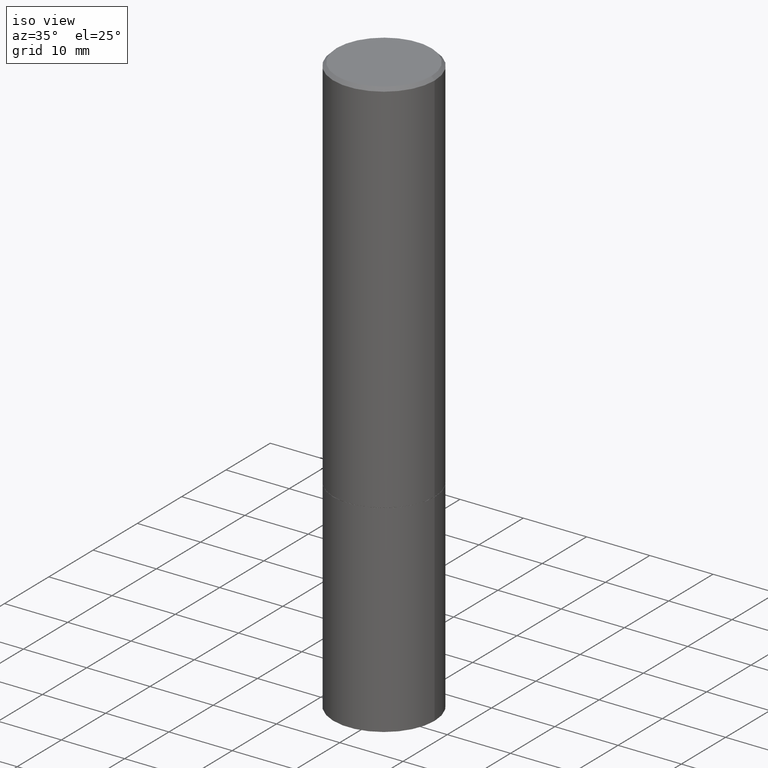
[diagram: clean part render]
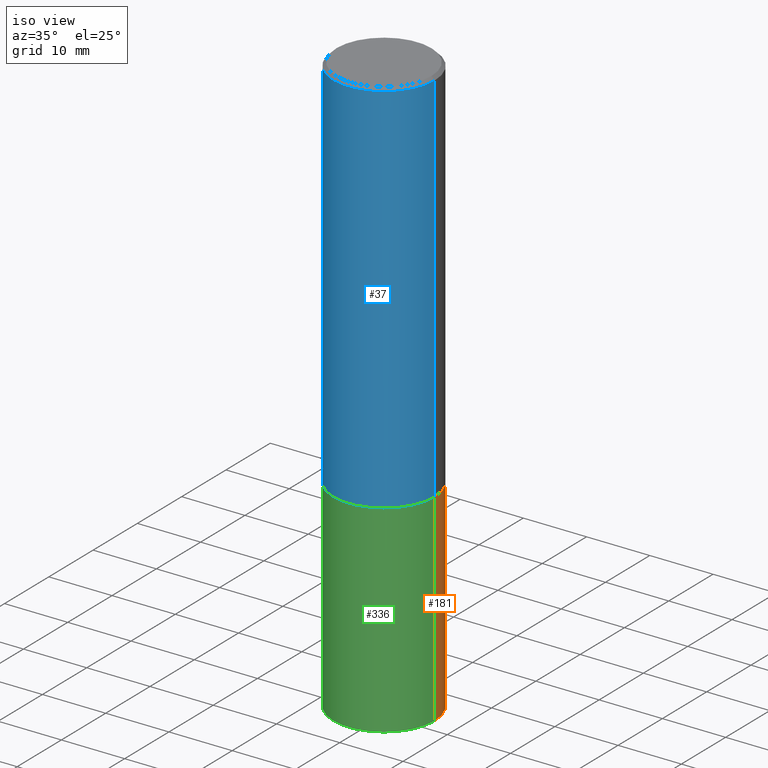
[diagram: same view with three faces highlighted in distinct colors, each labeled with its STEP entity id]
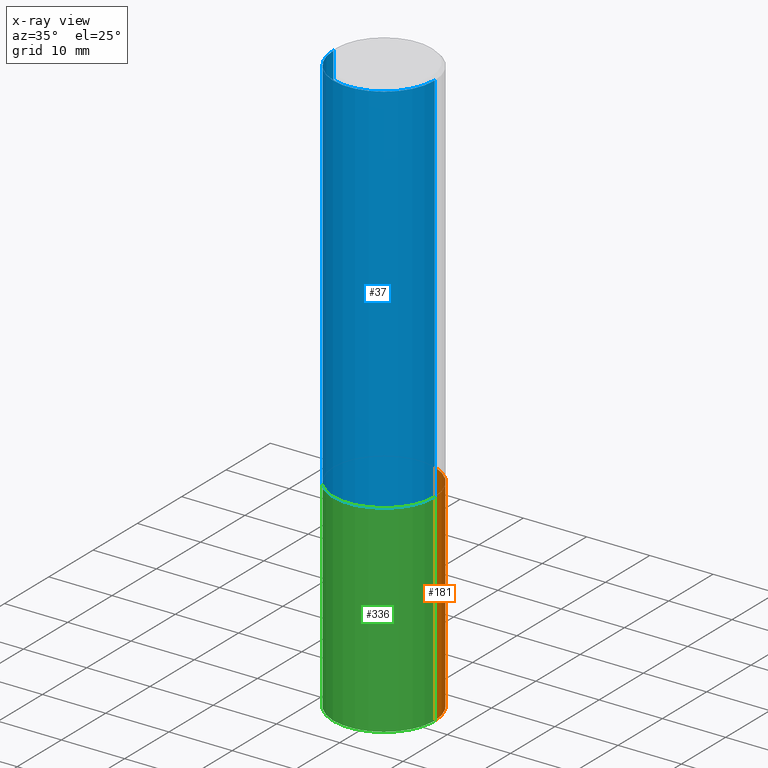
[diagram: x-ray of the same camera — body ghosted, the three highlighted faces saturated]
A machine part, iso view with three faces highlighted in distinct colors.
The next image is the same camera in x-ray (body ghosted, the three faces saturated) — at least one of them is partly hidden behind the body in this view.
Their STEP definitions:

[orange] entity #181 — the highlighted cylindrical surface (partial cylindrical patch) has radius 7.9997 mm, axis along (-0, 0, 1).
#2 = AXIS2_PLACEMENT_3D ( 'NONE', #160, #349, #328 ) ;
#4 = EDGE_LOOP ( 'NONE', ( #127, #9, #43, #89 ) ) ;
#9 = ORIENTED_EDGE ( 'NONE', *, *, #147, .T. ) ;
#12 = DIRECTION ( 'NONE',  ( 1.000000000000000000, -6.982962677686266711E-15, 0.000000000000000000 ) ) ;
#17 = CARTESIAN_POINT ( 'NONE',  ( 0.3149500000000000077, -2.199284095337289871E-15, 1.535751875536930130E-29 ) ) ;
#19 = CIRCLE ( 'NONE', #346, 0.3149500000000000077 ) ;
#39 = VECTOR ( 'NONE', #176, 39.37007874015748143 ) ;
#43 = ORIENTED_EDGE ( 'NONE', *, *, #212, .F. ) ;
#61 = CARTESIAN_POINT ( 'NONE',  ( -0.3149500000000000077, 2.237854346276435590E-15, -1.549218606675782676E-29 ) ) ;
#89 = ORIENTED_EDGE ( 'NONE', *, *, #214, .F. ) ;
#127 = ORIENTED_EDGE ( 'NONE', *, *, #290, .T. ) ;
#133 = DIRECTION ( 'NONE',  ( -2.445468806185136877E-29, 3.491481338843145188E-15, 1.000000000000000000 ) ) ;
#147 = EDGE_CURVE ( 'NONE', #167, #306, #305, .T. ) ;
#160 = CARTESIAN_POINT ( 'NONE',  ( 8.857488016002564476E-29, -1.264614540928987199E-14, -3.621999999999999886 ) ) ;
#167 = VERTEX_POINT ( 'NONE', #244 ) ;
#174 = CYLINDRICAL_SURFACE ( 'NONE', #291, 0.3149500000000000077 ) ;
#176 = DIRECTION ( 'NONE',  ( -2.445468806185136877E-29, 3.491481338843145188E-15, 1.000000000000000000 ) ) ;
#181 = ADVANCED_FACE ( 'NONE', ( #359 ), #174, .T. ) ;
#184 = CARTESIAN_POINT ( 'NONE',  ( 0.3149500000000000077, -1.044686131395256792E-14, -2.362199999999999633 ) ) ;
#202 = DIRECTION ( 'NONE',  ( 1.000000000000000000, -6.982962677686266711E-15, 4.876176775795936353E-29 ) ) ;
#212 = EDGE_CURVE ( 'NONE', #247, #306, #19, .T. ) ;
#214 = EDGE_CURVE ( 'NONE', #343, #247, #263, .T. ) ;
#216 = CIRCLE ( 'NONE', #2, 0.3149500000000000077 ) ;
#230 = CARTESIAN_POINT ( 'NONE',  ( 0.000000000000000000, 0.000000000000000000, 0.000000000000000000 ) ) ;
#244 = CARTESIAN_POINT ( 'NONE',  ( -0.3149500000000000077, -8.209006967676139823E-15, -3.621999999999999886 ) ) ;
#247 = VERTEX_POINT ( 'NONE', #184 ) ;
#255 = CARTESIAN_POINT ( 'NONE',  ( 0.3149500000000000077, -1.484542950462716186E-14, -3.621999999999999886 ) ) ;
#263 = LINE ( 'NONE', #17, #357 ) ;
#277 = CARTESIAN_POINT ( 'NONE',  ( -0.3149500000000000077, -8.209006967676139823E-15, -2.362199999999999633 ) ) ;
#290 = EDGE_CURVE ( 'NONE', #343, #167, #216, .T. ) ;
#291 = AXIS2_PLACEMENT_3D ( 'NONE', #230, #337, #202 ) ;
#292 = DIRECTION ( 'NONE',  ( -2.445468806185136597E-29, 3.491481338843145583E-15, 1.000000000000000000 ) ) ;
#305 = LINE ( 'NONE', #61, #39 ) ;
#306 = VERTEX_POINT ( 'NONE', #277 ) ;
#328 = DIRECTION ( 'NONE',  ( 1.000000000000000000, -6.982962677686263555E-15, 0.000000000000000000 ) ) ;
#337 = DIRECTION ( 'NONE',  ( -2.445468806185136597E-29, 3.491481338843145583E-15, 1.000000000000000000 ) ) ;
#343 = VERTEX_POINT ( 'NONE', #255 ) ;
#346 = AXIS2_PLACEMENT_3D ( 'NONE', #350, #292, #12 ) ;
#349 = DIRECTION ( 'NONE',  ( -2.445468806185136597E-29, 3.491481338843145583E-15, 1.000000000000000000 ) ) ;
#350 = CARTESIAN_POINT ( 'NONE',  ( 5.776686413970529753E-29, -8.247577218615278049E-15, -2.362199999999999633 ) ) ;
#357 = VECTOR ( 'NONE', #133, 39.37007874015748143 ) ;
#359 = FACE_OUTER_BOUND ( 'NONE', #4, .T. ) ;

[blue] entity #37 — the highlighted cylindrical surface (partial cylindrical patch) has radius 7.9997 mm, axis along (-0, 0, 1).
#13 = FACE_OUTER_BOUND ( 'NONE', #58, .T. ) ;
#15 = CARTESIAN_POINT ( 'NONE',  ( 5.774240945164344150E-29, -8.244085737276433464E-15, -2.361199999999999743 ) ) ;
#37 = ADVANCED_FACE ( 'NONE', ( #13 ), #239, .T. ) ;
#47 = DIRECTION ( 'NONE',  ( 1.000000000000000000, -6.982962677686263555E-15, 0.000000000000000000 ) ) ;
#48 = CARTESIAN_POINT ( 'NONE',  ( 0.000000000000000000, 0.000000000000000000, 0.000000000000000000 ) ) ;
#57 = CARTESIAN_POINT ( 'NONE',  ( 4.890937612370288047E-31, -6.982962677686311331E-17, -0.02000000000000005940 ) ) ;
#58 = EDGE_LOOP ( 'NONE', ( #283, #201, #342, #233 ) ) ;
#60 = DIRECTION ( 'NONE',  ( -2.445468806185136597E-29, 3.491481338843145583E-15, 1.000000000000000000 ) ) ;
#108 = DIRECTION ( 'NONE',  ( -2.445468806185136597E-29, 3.491481338843145583E-15, 1.000000000000000000 ) ) ;
#121 = AXIS2_PLACEMENT_3D ( 'NONE', #57, #60, #274 ) ;
#146 = VERTEX_POINT ( 'NONE', #200 ) ;
#150 = AXIS2_PLACEMENT_3D ( 'NONE', #15, #353, #47 ) ;
#156 = CARTESIAN_POINT ( 'NONE',  ( -0.3149499999999997302, 2.129454468560424601E-15, -0.02000000000000005940 ) ) ;
#159 = DIRECTION ( 'NONE',  ( 1.000000000000000000, -6.982962677686265922E-15, 4.876176775795935232E-29 ) ) ;
#178 = CARTESIAN_POINT ( 'NONE',  ( -0.3149500000000000077, -1.919103335750211213E-15, -2.361199999999999743 ) ) ;
#186 = DIRECTION ( 'NONE',  ( -2.445468806185136877E-29, 3.491481338843145188E-15, 1.000000000000000000 ) ) ;
#200 = CARTESIAN_POINT ( 'NONE',  ( 0.3149499999999997302, -2.230543471175005478E-15, -0.02000000000000005940 ) ) ;
#201 = ORIENTED_EDGE ( 'NONE', *, *, #253, .T. ) ;
#208 = VERTEX_POINT ( 'NONE', #156 ) ;
#210 = VERTEX_POINT ( 'NONE', #257 ) ;
#215 = LINE ( 'NONE', #324, #221 ) ;
#220 = DIRECTION ( 'NONE',  ( -2.445468806185136877E-29, 3.491481338843145188E-15, 1.000000000000000000 ) ) ;
#221 = VECTOR ( 'NONE', #186, 39.37007874015748143 ) ;
#228 = AXIS2_PLACEMENT_3D ( 'NONE', #48, #108, #159 ) ;
#229 = LINE ( 'NONE', #356, #302 ) ;
#233 = ORIENTED_EDGE ( 'NONE', *, *, #278, .F. ) ;
#239 = CYLINDRICAL_SURFACE ( 'NONE', #228, 0.3149499999999998967 ) ;
#253 = EDGE_CURVE ( 'NONE', #287, #210, #270, .T. ) ;
#257 = CARTESIAN_POINT ( 'NONE',  ( 0.3149500000000000077, -1.044336983261372333E-14, -2.361199999999999743 ) ) ;
#262 = EDGE_CURVE ( 'NONE', #210, #146, #215, .T. ) ;
#264 = CIRCLE ( 'NONE', #121, 0.3149499999999997302 ) ;
#270 = CIRCLE ( 'NONE', #150, 0.3149500000000000077 ) ;
#274 = DIRECTION ( 'NONE',  ( 1.000000000000000000, -6.982962677686266711E-15, 0.000000000000000000 ) ) ;
#278 = EDGE_CURVE ( 'NONE', #208, #146, #264, .T. ) ;
#283 = ORIENTED_EDGE ( 'NONE', *, *, #320, .F. ) ;
#287 = VERTEX_POINT ( 'NONE', #178 ) ;
#302 = VECTOR ( 'NONE', #220, 39.37007874015748143 ) ;
#320 = EDGE_CURVE ( 'NONE', #287, #208, #229, .T. ) ;
#324 = CARTESIAN_POINT ( 'NONE',  ( 0.3149499999999998967, -2.199284095337288688E-15, 1.535751875536929289E-29 ) ) ;
#342 = ORIENTED_EDGE ( 'NONE', *, *, #262, .T. ) ;
#353 = DIRECTION ( 'NONE',  ( -2.445468806185136597E-29, 3.491481338843145583E-15, 1.000000000000000000 ) ) ;
#356 = CARTESIAN_POINT ( 'NONE',  ( -0.3149499999999998967, 2.237854346276434801E-15, -1.549218606675782116E-29 ) ) ;

[green] entity #336 — the highlighted cylindrical surface (partial cylindrical patch) has radius 7.9997 mm, axis along (-0, 0, 1).
#7 = ORIENTED_EDGE ( 'NONE', *, *, #363, .T. ) ;
#14 = DIRECTION ( 'NONE',  ( -2.445468806185136597E-29, 3.491481338843145583E-15, 1.000000000000000000 ) ) ;
#17 = CARTESIAN_POINT ( 'NONE',  ( 0.3149500000000000077, -2.199284095337289871E-15, 1.535751875536930130E-29 ) ) ;
#31 = CARTESIAN_POINT ( 'NONE',  ( 5.776686413970529753E-29, -8.247577218615278049E-15, -2.362199999999999633 ) ) ;
#39 = VECTOR ( 'NONE', #176, 39.37007874015748143 ) ;
#46 = CYLINDRICAL_SURFACE ( 'NONE', #52, 0.3149500000000000077 ) ;
#52 = AXIS2_PLACEMENT_3D ( 'NONE', #321, #14, #183 ) ;
#61 = CARTESIAN_POINT ( 'NONE',  ( -0.3149500000000000077, 2.237854346276435590E-15, -1.549218606675782676E-29 ) ) ;
#63 = EDGE_LOOP ( 'NONE', ( #120, #7, #251, #161 ) ) ;
#73 = FACE_OUTER_BOUND ( 'NONE', #63, .T. ) ;
#120 = ORIENTED_EDGE ( 'NONE', *, *, #147, .F. ) ;
#132 = EDGE_CURVE ( 'NONE', #306, #247, #205, .T. ) ;
#133 = DIRECTION ( 'NONE',  ( -2.445468806185136877E-29, 3.491481338843145188E-15, 1.000000000000000000 ) ) ;
#141 = DIRECTION ( 'NONE',  ( -2.445468806185136597E-29, 3.491481338843145583E-15, 1.000000000000000000 ) ) ;
#147 = EDGE_CURVE ( 'NONE', #167, #306, #305, .T. ) ;
#155 = DIRECTION ( 'NONE',  ( 1.000000000000000000, -6.982962677686263555E-15, 0.000000000000000000 ) ) ;
#161 = ORIENTED_EDGE ( 'NONE', *, *, #132, .F. ) ;
#167 = VERTEX_POINT ( 'NONE', #244 ) ;
#176 = DIRECTION ( 'NONE',  ( -2.445468806185136877E-29, 3.491481338843145188E-15, 1.000000000000000000 ) ) ;
#183 = DIRECTION ( 'NONE',  ( 1.000000000000000000, -6.982962677686266711E-15, 4.876176775795936353E-29 ) ) ;
#184 = CARTESIAN_POINT ( 'NONE',  ( 0.3149500000000000077, -1.044686131395256792E-14, -2.362199999999999633 ) ) ;
#205 = CIRCLE ( 'NONE', #312, 0.3149500000000000077 ) ;
#214 = EDGE_CURVE ( 'NONE', #343, #247, #263, .T. ) ;
#244 = CARTESIAN_POINT ( 'NONE',  ( -0.3149500000000000077, -8.209006967676139823E-15, -3.621999999999999886 ) ) ;
#247 = VERTEX_POINT ( 'NONE', #184 ) ;
#248 = DIRECTION ( 'NONE',  ( 1.000000000000000000, -6.982962677686266711E-15, 0.000000000000000000 ) ) ;
#251 = ORIENTED_EDGE ( 'NONE', *, *, #214, .T. ) ;
#255 = CARTESIAN_POINT ( 'NONE',  ( 0.3149500000000000077, -1.484542950462716186E-14, -3.621999999999999886 ) ) ;
#263 = LINE ( 'NONE', #17, #357 ) ;
#271 = AXIS2_PLACEMENT_3D ( 'NONE', #352, #347, #155 ) ;
#277 = CARTESIAN_POINT ( 'NONE',  ( -0.3149500000000000077, -8.209006967676139823E-15, -2.362199999999999633 ) ) ;
#305 = LINE ( 'NONE', #61, #39 ) ;
#306 = VERTEX_POINT ( 'NONE', #277 ) ;
#312 = AXIS2_PLACEMENT_3D ( 'NONE', #31, #141, #248 ) ;
#321 = CARTESIAN_POINT ( 'NONE',  ( 0.000000000000000000, 0.000000000000000000, 0.000000000000000000 ) ) ;
#336 = ADVANCED_FACE ( 'NONE', ( #73 ), #46, .T. ) ;
#343 = VERTEX_POINT ( 'NONE', #255 ) ;
#347 = DIRECTION ( 'NONE',  ( -2.445468806185136597E-29, 3.491481338843145583E-15, 1.000000000000000000 ) ) ;
#352 = CARTESIAN_POINT ( 'NONE',  ( 8.857488016002564476E-29, -1.264614540928987199E-14, -3.621999999999999886 ) ) ;
#357 = VECTOR ( 'NONE', #133, 39.37007874015748143 ) ;
#358 = CIRCLE ( 'NONE', #271, 0.3149500000000000077 ) ;
#363 = EDGE_CURVE ( 'NONE', #167, #343, #358, .T. ) ;